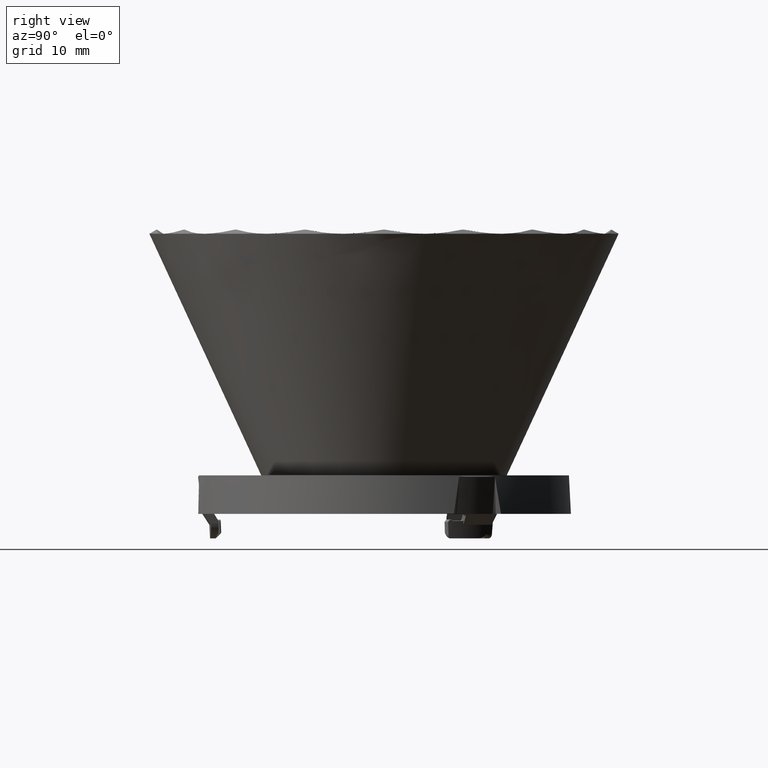
[diagram: clean part render]
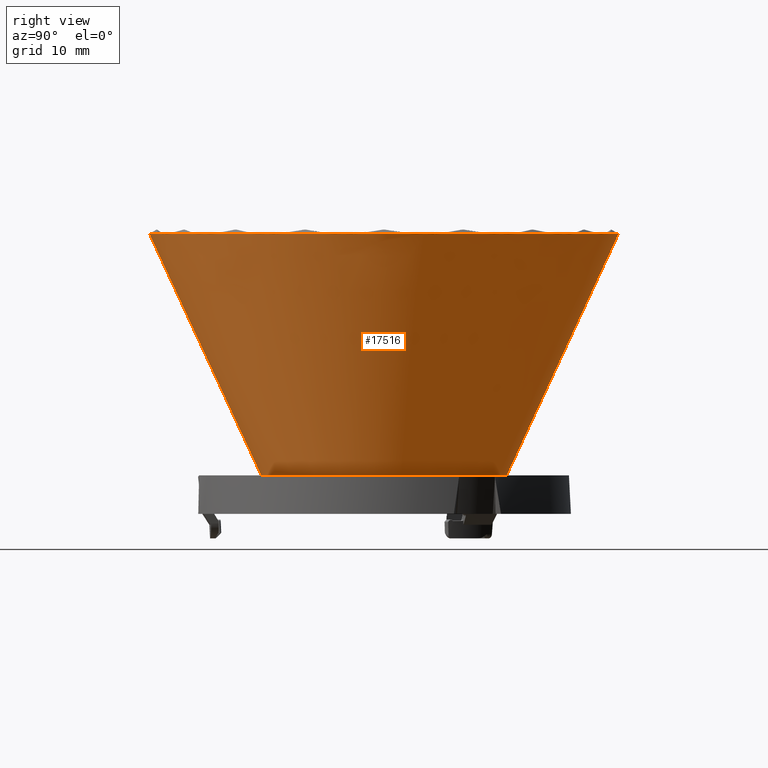
[diagram: same view with one face highlighted and labeled with its STEP entity id]
A machine part, right view. The second image highlights one B-rep face of the part: STEP entity #17516.
In plain terms, the highlighted face is a freeform B-spline surface patch.
Its self-contained STEP definition (entity closure, byte-faithful):
#279 = EDGE_CURVE ( 'NONE', #3767, #15500, #4960, .T. ) ;
#340 = CIRCLE ( 'NONE', #22154, 33.50000000000000000 ) ;
#434 = CARTESIAN_POINT ( 'NONE',  ( 17.52377203157334400, -35.04754406314667400, 4.500000000000119000 ) ) ;
#472 = DIRECTION ( 'NONE',  ( -1.000000000000000000, 0.0000000000000000000, 0.0000000000000000000 ) ) ;
#535 = CARTESIAN_POINT ( 'NONE',  ( 33.50000000000001400, -67.00000000000001400, 38.99999999999999300 ) ) ;
#1118 = CARTESIAN_POINT ( 'NONE',  ( 16.74999999999993600, -29.01185102677873200, 38.99999999999999300 ) ) ;
#1250 = B_SPLINE_CURVE_WITH_KNOTS ( 'NONE', 3,
 ( #15827, #2413, #9188, #25003 ),
 .UNSPECIFIED., .F., .F.,
 ( 4, 4 ),
 ( 0.1801735269630433100, 1.000000000000000000 ),
 .UNSPECIFIED. ) ;
#1722 = CIRCLE ( 'NONE', #20513, 33.50000000000000000 ) ;
#1769 = VERTEX_POINT ( 'NONE', #1942 ) ;
#1843 = VERTEX_POINT ( 'NONE', #24923 ) ;
#1942 = CARTESIAN_POINT ( 'NONE',  ( -33.50000000000002800, -1.387778780781445700E-014, 39.00000000000000000 ) ) ;
#1950 = DIRECTION ( 'NONE',  ( -0.0000000000000000000, -0.0000000000000000000, 1.000000000000000000 ) ) ;
#2184 = CARTESIAN_POINT ( 'NONE',  ( 0.0000000000000000000, 0.0000000000000000000, 38.99999999999999300 ) ) ;
#2283 = ORIENTED_EDGE ( 'NONE', *, *, #279, .T. ) ;
#2297 = CARTESIAN_POINT ( 'NONE',  ( 22.13542053906849800, 0.0000000000000000000, 14.27575171319879600 ) ) ;
#2413 = CARTESIAN_POINT ( 'NONE',  ( -22.13542053906849500, -2.710807191095080600E-015, 14.27575171319878900 ) ) ;
#2712 = CARTESIAN_POINT ( 'NONE',  ( -17.52377203157333700, -35.04754406314667400, 4.500000000000119000 ) ) ;
#2818 = CARTESIAN_POINT ( 'NONE',  ( -33.50000000000001400, -4.969928515132038100E-015, 38.99999999999999300 ) ) ;
#3518 = B_SPLINE_CURVE_WITH_KNOTS ( 'NONE', 3,
 ( #20258, #2297, #24889, #11360 ),
 .UNSPECIFIED., .F., .F.,
 ( 4, 4 ),
 ( 0.1801735269630434500, 1.000000000000000000 ),
 .UNSPECIFIED. ) ;
#3659 = CARTESIAN_POINT ( 'NONE',  ( 0.0000000000000000000, 0.0000000000000000000, 4.500000000000121700 ) ) ;
#3767 = VERTEX_POINT ( 'NONE', #22762 ) ;
#3871 = CIRCLE ( 'NONE', #17136, 33.50000000000000000 ) ;
#4318 = EDGE_CURVE ( 'NONE', #1843, #28645, #3871, .T. ) ;
#4437 = ORIENTED_EDGE ( 'NONE', *, *, #17723, .T. ) ;
#4440 = AXIS2_PLACEMENT_3D ( 'NONE', #27494, #13974, #472 ) ;
#4443 = DIRECTION ( 'NONE',  ( -1.000000000000000000, 0.0000000000000000000, 0.0000000000000000000 ) ) ;
#4574 = ORIENTED_EDGE ( 'NONE', *, *, #28073, .T. ) ;
#4617 = EDGE_CURVE ( 'NONE', #8517, #19451, #23621, .T. ) ;
#4960 = CIRCLE ( 'NONE', #11930, 17.52377203157334400 ) ;
#4982 = CARTESIAN_POINT ( 'NONE',  ( 22.13542053906849500, 5.731169202946459500E-016, 14.27575171319878900 ) ) ;
#5561 = CIRCLE ( 'NONE', #27731, 33.50000000000000000 ) ;
#5730 = CARTESIAN_POINT ( 'NONE',  ( 0.0000000000000000000, 0.0000000000000000000, 38.99999999999999300 ) ) ;
#5825 = ORIENTED_EDGE ( 'NONE', *, *, #17165, .T. ) ;
#6166 = VERTEX_POINT ( 'NONE', #8544 ) ;
#6193 = ORIENTED_EDGE ( 'NONE', *, *, #11318, .T. ) ;
#6204 = CIRCLE ( 'NONE', #27962, 33.50000000000000000 ) ;
#6487 = DIRECTION ( 'NONE',  ( 0.0000000000000000000, 0.0000000000000000000, -1.000000000000000000 ) ) ;
#6619 = CARTESIAN_POINT ( 'NONE',  ( 0.0000000000000000000, 0.0000000000000000000, 38.99999999999999300 ) ) ;
#7227 = CARTESIAN_POINT ( 'NONE',  ( -22.13542053906848700, -44.27084107813698200, 14.27575171319878700 ) ) ;
#7881 = ORIENTED_EDGE ( 'NONE', *, *, #20717, .T. ) ;
#7983 = DIRECTION ( 'NONE',  ( -1.000000000000000000, 0.0000000000000000000, 0.0000000000000000000 ) ) ;
#8093 = CIRCLE ( 'NONE', #4440, 33.50000000000000000 ) ;
#8517 = VERTEX_POINT ( 'NONE', #11345 ) ;
#8544 = CARTESIAN_POINT ( 'NONE',  ( -16.75000000000012400, -29.01185102677863600, 38.99999999999998600 ) ) ;
#8584 = DIRECTION ( 'NONE',  ( 0.0000000000000000000, 0.0000000000000000000, -1.000000000000000000 ) ) ;
#8880 = DIRECTION ( 'NONE',  ( -1.000000000000000000, 0.0000000000000000000, 0.0000000000000000000 ) ) ;
#9188 = CARTESIAN_POINT ( 'NONE',  ( -31.83625169697009500, -3.898816373754391400E-015, 35.36844120951746400 ) ) ;
#9480 = EDGE_CURVE ( 'NONE', #29090, #8517, #5561, .T. ) ;
#9499 = CARTESIAN_POINT ( 'NONE',  ( 31.83625169697009500, 8.242849732214992300E-016, 35.36844120951746400 ) ) ;
#10135 = EDGE_CURVE ( 'NONE', #15500, #12763, #3518, .T. ) ;
#10461 = CARTESIAN_POINT ( 'NONE',  ( 0.0000000000000000000, 0.0000000000000000000, 38.99999999999999300 ) ) ;
#10646 = ORIENTED_EDGE ( 'NONE', *, *, #10135, .T. ) ;
#10978 = CARTESIAN_POINT ( 'NONE',  ( 0.0000000000000000000, 0.0000000000000000000, 38.99999999999999300 ) ) ;
#11318 = EDGE_CURVE ( 'NONE', #12614, #1769, #6204, .T. ) ;
#11345 = CARTESIAN_POINT ( 'NONE',  ( 5.817213951842079600, -32.99105972590902500, 39.00000000000000700 ) ) ;
#11360 = CARTESIAN_POINT ( 'NONE',  ( 33.50000000000001400, 8.673617379884035500E-016, 38.99999999999999300 ) ) ;
#11775 = CARTESIAN_POINT ( 'NONE',  ( -31.83625169697009100, -63.67250339394018300, 35.36844120951746400 ) ) ;
#11930 = AXIS2_PLACEMENT_3D ( 'NONE', #3659, #1950, #15190 ) ;
#12017 = AXIS2_PLACEMENT_3D ( 'NONE', #10461, #26272, #12746 ) ;
#12614 = VERTEX_POINT ( 'NONE', #17451 ) ;
#12746 = DIRECTION ( 'NONE',  ( -1.000000000000000000, 0.0000000000000000000, 0.0000000000000000000 ) ) ;
#12763 = VERTEX_POINT ( 'NONE', #22755 ) ;
#12774 = CARTESIAN_POINT ( 'NONE',  ( 0.0000000000000000000, 0.0000000000000000000, 38.99999999999999300 ) ) ;
#13245 = DIRECTION ( 'NONE',  ( -1.000000000000000000, 0.0000000000000000000, 0.0000000000000000000 ) ) ;
#13603 = ORIENTED_EDGE ( 'NONE', *, *, #24431, .T. ) ;
#13974 = DIRECTION ( 'NONE',  ( 0.0000000000000000000, 0.0000000000000000000, -1.000000000000000000 ) ) ;
#14043 = CARTESIAN_POINT ( 'NONE',  ( 33.50000000000001400, 8.673617379884034500E-016, 38.99999999999999300 ) ) ;
#14060 = CARTESIAN_POINT ( 'NONE',  ( 25.66248884448574300, -21.53338492449912100, 39.00000000000000000 ) ) ;
#14170 = VERTEX_POINT ( 'NONE', #20993 ) ;
#15041 = DIRECTION ( 'NONE',  ( -1.000000000000000000, 0.0000000000000000000, 0.0000000000000000000 ) ) ;
#15178 = ORIENTED_EDGE ( 'NONE', *, *, #9480, .T. ) ;
#15190 = DIRECTION ( 'NONE',  ( -1.000000000000000000, 0.0000000000000000000, 0.0000000000000000000 ) ) ;
#15500 = VERTEX_POINT ( 'NONE', #19454 ) ;
#15827 = CARTESIAN_POINT ( 'NONE',  ( -17.52377203157334400, -2.146043132745420400E-015, 4.500000000000121700 ) ) ;
#16036 = CARTESIAN_POINT ( 'NONE',  ( 17.52377203157334100, 4.537149064303886600E-016, 4.500000000000118100 ) ) ;
#16329 = CARTESIAN_POINT ( 'NONE',  ( -33.50000000000000700, -67.00000000000001400, 38.99999999999999300 ) ) ;
#16781 = EDGE_LOOP ( 'NONE', ( #28866, #2283, #10646, #4437, #19342, #13603, #15178, #21239, #4574, #7881, #5825, #6193 ) ) ;
#17136 = AXIS2_PLACEMENT_3D ( 'NONE', #10978, #26782, #13245 ) ;
#17165 = EDGE_CURVE ( 'NONE', #14170, #12614, #8093, .T. ) ;
#17451 = CARTESIAN_POINT ( 'NONE',  ( -31.47970279632800900, -11.45767480140971800, 38.99999999999997900 ) ) ;
#17516 = ADVANCED_FACE ( 'NONE', ( #20434 ), #23174, .T. ) ;
#17723 = EDGE_CURVE ( 'NONE', #12763, #1843, #1722, .T. ) ;
#17977 = DIRECTION ( 'NONE',  ( 0.0000000000000000000, 0.0000000000000000000, -1.000000000000000000 ) ) ;
#18501 = CARTESIAN_POINT ( 'NONE',  ( -17.52377203157334100, -2.599758039175809000E-015, 4.500000000000118100 ) ) ;
#19342 = ORIENTED_EDGE ( 'NONE', *, *, #4318, .T. ) ;
#19451 = VERTEX_POINT ( 'NONE', #19548 ) ;
#19454 = CARTESIAN_POINT ( 'NONE',  ( 17.52377203157334400, 0.0000000000000000000, 4.500000000000121700 ) ) ;
#19548 = CARTESIAN_POINT ( 'NONE',  ( -5.817213951842291800, -32.99105972590896100, 38.99999999999999300 ) ) ;
#20017 = CARTESIAN_POINT ( 'NONE',  ( 0.0000000000000000000, 0.0000000000000000000, 38.99999999999999300 ) ) ;
#20258 = CARTESIAN_POINT ( 'NONE',  ( 17.52377203157334400, 0.0000000000000000000, 4.500000000000121700 ) ) ;
#20434 = FACE_OUTER_BOUND ( 'NONE', #16781, .T. ) ;
#20513 = AXIS2_PLACEMENT_3D ( 'NONE', #12774, #28558, #15041 ) ;
#20717 = EDGE_CURVE ( 'NONE', #6166, #14170, #21702, .T. ) ;
#20763 = CARTESIAN_POINT ( 'NONE',  ( 22.13542053906849500, -44.27084107813698200, 14.27575171319878700 ) ) ;
#20922 = CIRCLE ( 'NONE', #22890, 33.50000000000000000 ) ;
#20993 = CARTESIAN_POINT ( 'NONE',  ( -25.66248884448591400, -21.53338492449895400, 39.00000000000000700 ) ) ;
#21239 = ORIENTED_EDGE ( 'NONE', *, *, #4617, .T. ) ;
#21514 = DIRECTION ( 'NONE',  ( 0.0000000000000000000, 0.0000000000000000000, -1.000000000000000000 ) ) ;
#21702 = CIRCLE ( 'NONE', #25099, 33.50000000000000000 ) ;
#22121 = CARTESIAN_POINT ( 'NONE',  ( 0.0000000000000000000, 0.0000000000000000000, 38.99999999999999300 ) ) ;
#22154 = AXIS2_PLACEMENT_3D ( 'NONE', #2184, #17977, #4443 ) ;
#22286 = DIRECTION ( 'NONE',  ( -1.000000000000000000, 0.0000000000000000000, 0.0000000000000000000 ) ) ;
#22419 = DIRECTION ( 'NONE',  ( 0.0000000000000000000, 0.0000000000000000000, -1.000000000000000000 ) ) ;
#22755 = CARTESIAN_POINT ( 'NONE',  ( 33.50000000000001400, 8.673617379884035500E-016, 38.99999999999999300 ) ) ;
#22762 = CARTESIAN_POINT ( 'NONE',  ( -17.52377203157334400, -2.146043132745420400E-015, 4.500000000000121700 ) ) ;
#22890 = AXIS2_PLACEMENT_3D ( 'NONE', #20017, #6487, #22286 ) ;
#23035 = CARTESIAN_POINT ( 'NONE',  ( -22.13542053906849500, -3.283924111389727200E-015, 14.27575171319878900 ) ) ;
#23174 =( BOUNDED_SURFACE ( )  B_SPLINE_SURFACE ( 3, 3, ( 
 ( #16036, #434, #2712, #18501 ),
 ( #4982, #20763, #7227, #23035 ),
 ( #9499, #25304, #11775, #27565 ),
 ( #14043, #535, #16329, #2818 ) ),
 .UNSPECIFIED., .F., .F., .F. ) 
 B_SPLINE_SURFACE_WITH_KNOTS ( ( 4, 4 ),
 ( 4, 4 ),
 ( 0.1801735269630433100, 1.000000000000000000 ),
 ( 0.0000000000000000000, 1.000000000000000000 ),
 .UNSPECIFIED. ) 
 GEOMETRIC_REPRESENTATION_ITEM ( )  RATIONAL_B_SPLINE_SURFACE ( (
 ( 1.000000000000000000, 0.3333333333333334300, 0.3333333333333334300, 1.000000000000000000),
 ( 1.000000000000000000, 0.3333333333333334300, 0.3333333333333334300, 1.000000000000000000),
 ( 1.000000000000000000, 0.3333333333333334300, 0.3333333333333334300, 1.000000000000000000),
 ( 1.000000000000000000, 0.3333333333333334300, 0.3333333333333334300, 1.000000000000000000) ) ) 
 REPRESENTATION_ITEM ( '' )  SURFACE ( )  );
#23621 = CIRCLE ( 'NONE', #12017, 33.50000000000000000 ) ;
#24404 = DIRECTION ( 'NONE',  ( -1.000000000000000000, 0.0000000000000000000, 0.0000000000000000000 ) ) ;
#24431 = EDGE_CURVE ( 'NONE', #28645, #29090, #20922, .T. ) ;
#24889 = CARTESIAN_POINT ( 'NONE',  ( 31.83625169697009500, 0.0000000000000000000, 35.36844120951746400 ) ) ;
#24923 = CARTESIAN_POINT ( 'NONE',  ( 31.47970279632793100, -11.45767480140991500, 38.99999999999997900 ) ) ;
#25003 = CARTESIAN_POINT ( 'NONE',  ( -33.50000000000002800, -1.387778780781445700E-014, 39.00000000000000000 ) ) ;
#25099 = AXIS2_PLACEMENT_3D ( 'NONE', #5730, #21514, #7983 ) ;
#25304 = CARTESIAN_POINT ( 'NONE',  ( 31.83625169697009500, -63.67250339394018300, 35.36844120951746400 ) ) ;
#26124 = EDGE_CURVE ( 'NONE', #3767, #1769, #1250, .T. ) ;
#26272 = DIRECTION ( 'NONE',  ( 0.0000000000000000000, 0.0000000000000000000, -1.000000000000000000 ) ) ;
#26782 = DIRECTION ( 'NONE',  ( 0.0000000000000000000, 0.0000000000000000000, -1.000000000000000000 ) ) ;
#27494 = CARTESIAN_POINT ( 'NONE',  ( 0.0000000000000000000, 0.0000000000000000000, 38.99999999999999300 ) ) ;
#27565 = CARTESIAN_POINT ( 'NONE',  ( -31.83625169697009500, -4.723101346975891000E-015, 35.36844120951746400 ) ) ;
#27731 = AXIS2_PLACEMENT_3D ( 'NONE', #22121, #8584, #24404 ) ;
#27962 = AXIS2_PLACEMENT_3D ( 'NONE', #6619, #22419, #8880 ) ;
#28073 = EDGE_CURVE ( 'NONE', #19451, #6166, #340, .T. ) ;
#28558 = DIRECTION ( 'NONE',  ( 0.0000000000000000000, 0.0000000000000000000, -1.000000000000000000 ) ) ;
#28645 = VERTEX_POINT ( 'NONE', #14060 ) ;
#28866 = ORIENTED_EDGE ( 'NONE', *, *, #26124, .F. ) ;
#29090 = VERTEX_POINT ( 'NONE', #1118 ) ;